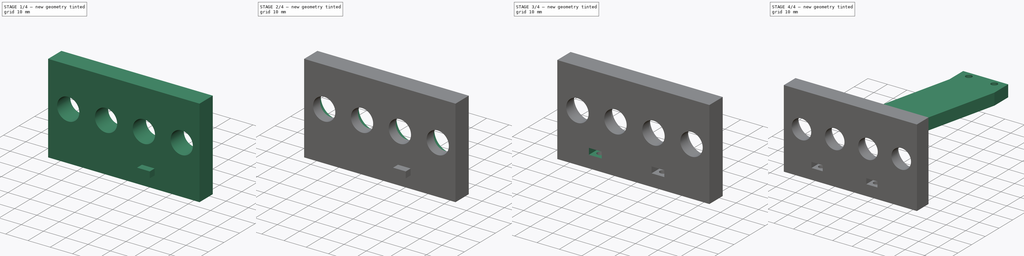
[diagram: build sequence overview — one tinted view per stage of 4, left to right]
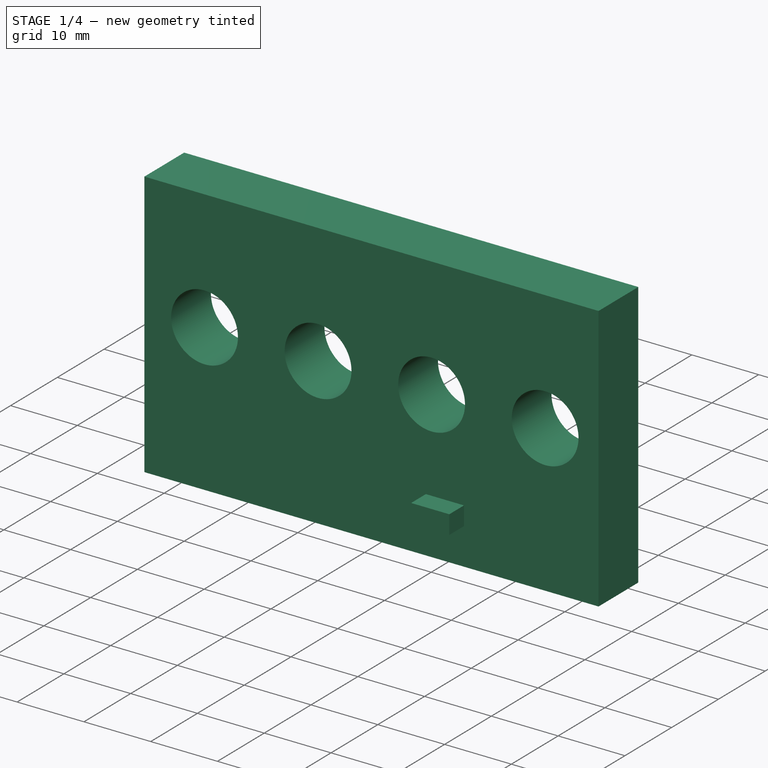
[diagram: stage 1 of 4 — iso view after this stage's code; geometry added in this stage tinted green]
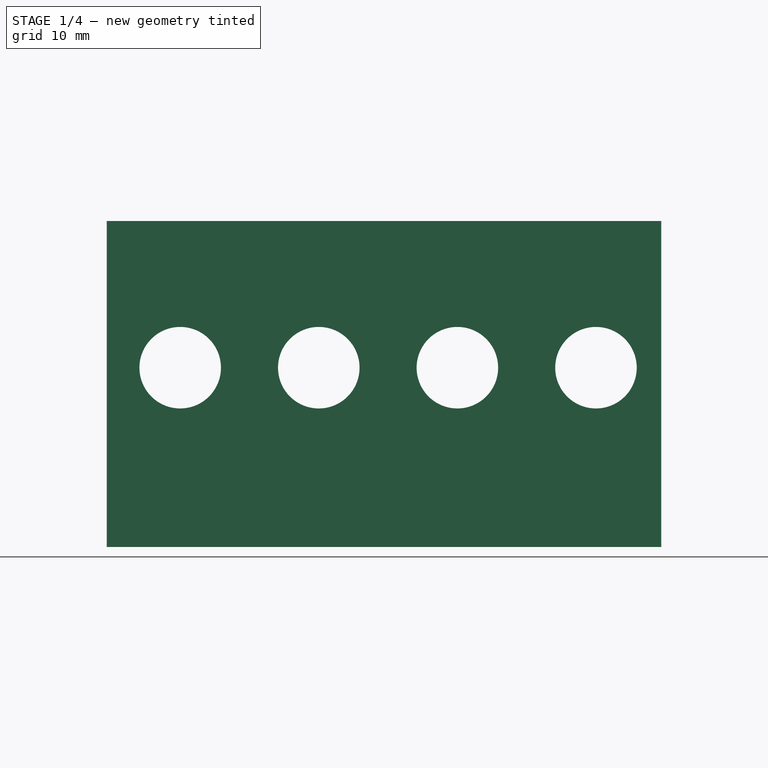
[diagram: stage 1 of 4 — front view after this stage's code; geometry added in this stage tinted green]
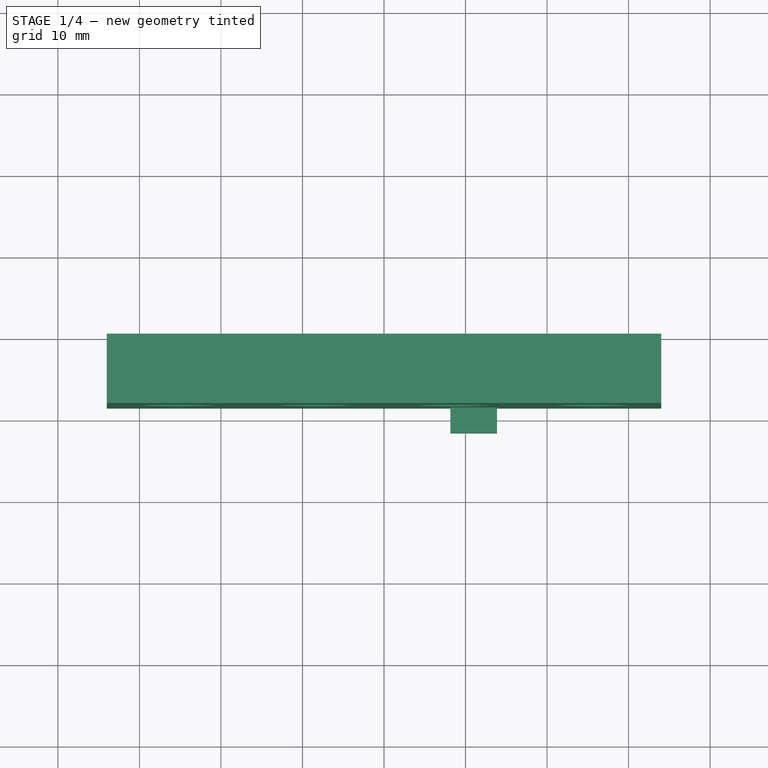
[diagram: stage 1 of 4 — top view after this stage's code; geometry added in this stage tinted green]
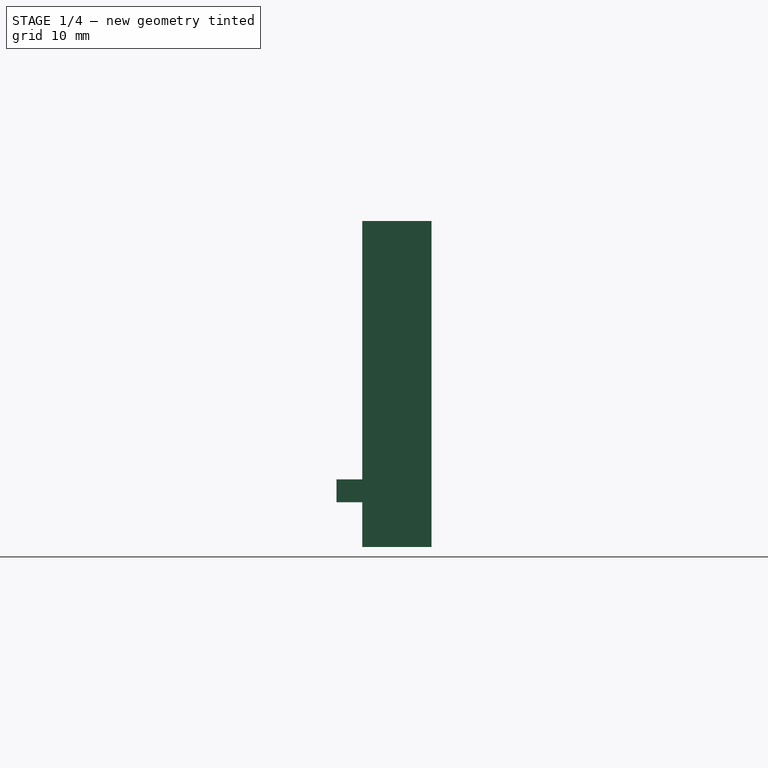
[diagram: stage 1 of 4 — right view after this stage's code; geometry added in this stage tinted green]
FCSTD DOCUMENT  (FreeCAD 0.16R6712 (Git))
Label: cinch-holder
License: All rights reserved
LicenseURL: http://en.wikipedia.org/wiki/All_rights_reserved
objects: Part::Part2DObjectPython×6, Sketcher::SketchObject×5, PartDesign::Pad×3, PartDesign::Pocket×2, Part::Extrusion×2, Part::Cut×2, App::DocumentObjectGroup×1
note: 25 computed .brp shape members not serialized (recipe doc carries the construction recipe); baked Part::Feature solids carry a one-line shape summary decoded from their .brp

FEATURE [Sketcher::SketchObject] Sketch
  Placement = pos=(0,-8.5,0) rot=(-1,0,0;4.71239rad)
  sketch-geometry (11):
    g0: LineSegment StartX=74 StartY=3.5 StartZ=0 EndX=74 EndY=43.5 EndZ=0
    g1: Circle CenterX=15 CenterY=25.5 CenterZ=0 NormalX=0 NormalY=0 NormalZ=1 Radius=5
    g2: Circle CenterX=32 CenterY=25.5 CenterZ=0 NormalX=0 NormalY=0 NormalZ=1 Radius=5
    g3: Circle CenterX=49 CenterY=25.5 CenterZ=0 NormalX=0 NormalY=0 NormalZ=1 Radius=5
    g4: Circle CenterX=66 CenterY=25.5 CenterZ=0 NormalX=0 NormalY=0 NormalZ=1 Radius=5
    g5: LineSegment [constr] StartX=15 StartY=25.5 StartZ=0 EndX=32 EndY=25.5 EndZ=0
    g6: LineSegment [constr] StartX=32 StartY=25.5 StartZ=0 EndX=49 EndY=25.5 EndZ=0
    g7: LineSegment [constr] StartX=49 StartY=25.5 StartZ=0 EndX=66 EndY=25.5 EndZ=0
    g8: LineSegment StartX=74 StartY=43.5 StartZ=0 EndX=6 EndY=43.5 EndZ=0
    g9: LineSegment StartX=6 StartY=43.5 StartZ=0 EndX=6 EndY=3.5 EndZ=0
    g10: LineSegment StartX=6 StartY=3.5 StartZ=0 EndX=74 EndY=3.5 EndZ=0
  constraints (29):
    c: Vertical(g0)
    c: Radius(g1) = 5
    c: Equal(g1,g2)
    c: Equal(g1,g3)
    c: Equal(g1,g4)
    c: Coincident(g5,g1)
    c: Coincident(g5,g2)
    c: Horizontal(g5)
    c: Coincident(g5,g6)
    c: Horizontal(g6)
    c: Coincident(g6,g7)
    c: Coincident(g7,g4)
    c: Horizontal(g7)
    c: Distance(g5) = 17
    c: Distance(g6) = 17
    c: Distance(g7) = 17
    c: DistanceY(g-1,g1) = 25.5
    c: DistanceX(g-1,g1) = 15
    c: Coincident(g8,g0)
    c: Horizontal(g8)
    c: Coincident(g8,g9)
    c: Vertical(g9)
    c: DistanceX(g-1,g9) = 6
    c: DistanceY(g-1,g9) = 3.5
    c: Coincident(g10,g9)
    c: Coincident(g10,g0)
    c: Horizontal(g10)
    c: Coincident(g3,g6)
    c: DistanceY(g-1,g8) = 43.5
FEATURE [PartDesign::Pad] Pad
  Length = 8.5
  Length2 = 100
  Placement = pos=(0,-8.5,0) rot=(-1,0,0;4.71239rad)
  Reversed = true
  Sketch = -> Sketch
  Type = 0
FEATURE [Part::Part2DObjectPython] Polygon001  # Draft 2D object (typed FeaturePython)
  ChamferSize = 0
  DrawMode = 0
  FacesNumber = 6
  FilletRadius = 0
  MakeFace = true
  Placement = pos=(9.76616,-38.7357,0) rot=(0,0,1;0.523599rad)
  Radius = 3.3
FEATURE [Part::Part2DObjectPython] Rectangle001  # Draft 2D object (typed FeaturePython)
  ChamferSize = 0
  Columns = 1
  FilletRadius = 0
  Height = -5
  Length = 5.71577
  MakeFace = true
  Placement = pos=(6.90828,-40.3857,0) rot=(0,0,1;0rad)
  Rows = 1
FEATURE [Part::Part2DObjectPython] Fusion001  # Draft 2D object (typed FeaturePython)
  Base = -> Rectangle001
  ChamferSize = 0
  Closed = false
  End = (12.624,-37.0857,0)
  FilletRadius = 0
  Length = 0
  MakeFace = true
  Points = (7) [(12.624,-40.3857,0),(12.624,-45.3857,0),(6.90828,-45.3857,0),(6.90828,-40.3857,0),(6.90828,-37.0857,0),(9.76616,-35.4357,0),(12.624,-37.0857,0)]
  Start = (12.624,-40.3857,0)
  Subdivisions = 0
  Tool = -> Polygon001
FEATURE [Part::Extrusion] Extrude001
  Base = -> Fusion001
  Dir = (0,0,2.8)
  Placement = pos=(41.2338,33.7357,9) rot=(0,0,1;0rad)
  Solid = false
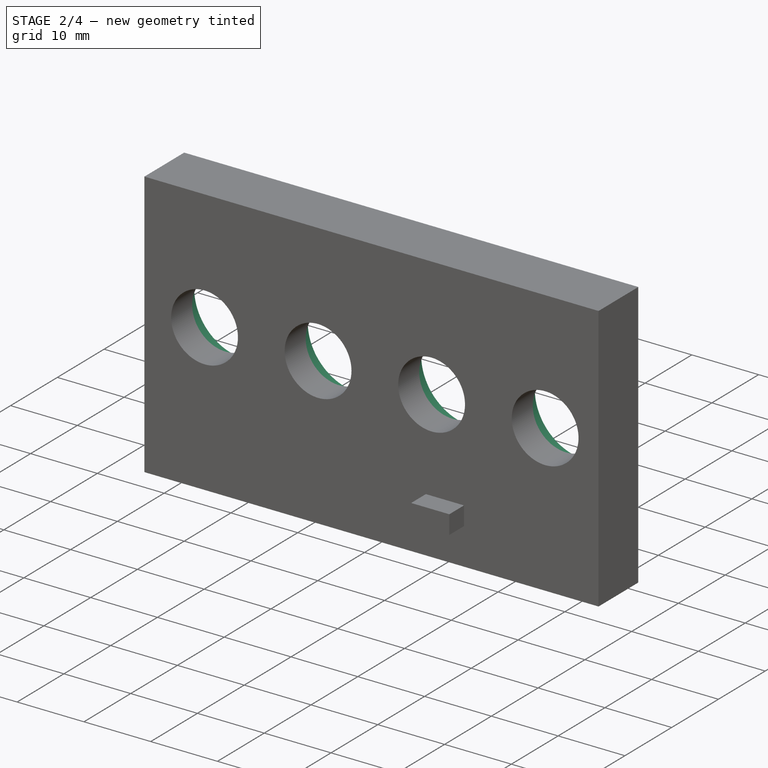
[diagram: stage 2 of 4 — iso view after this stage's code; geometry added in this stage tinted green]
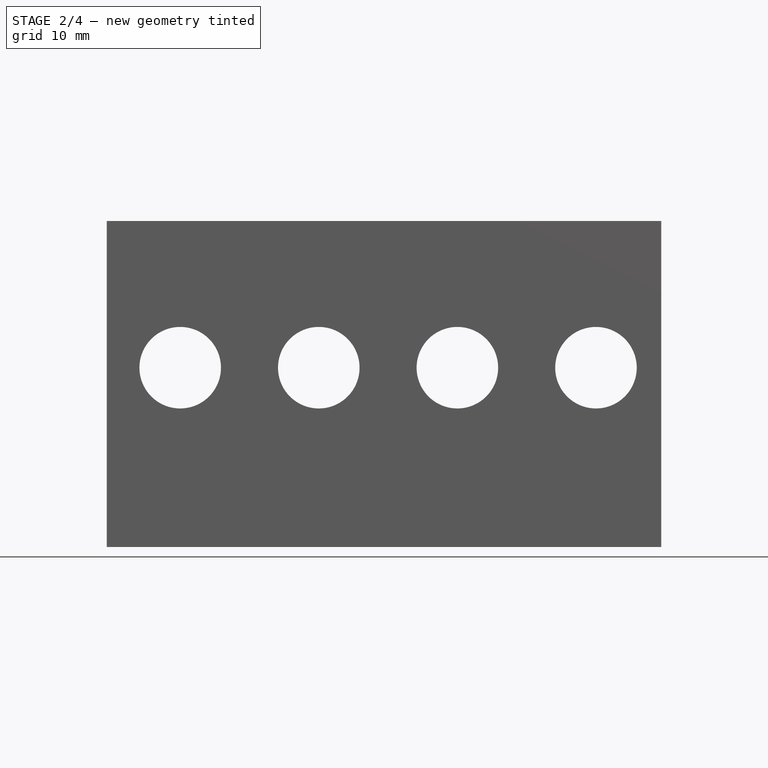
[diagram: stage 2 of 4 — front view after this stage's code; geometry added in this stage tinted green]
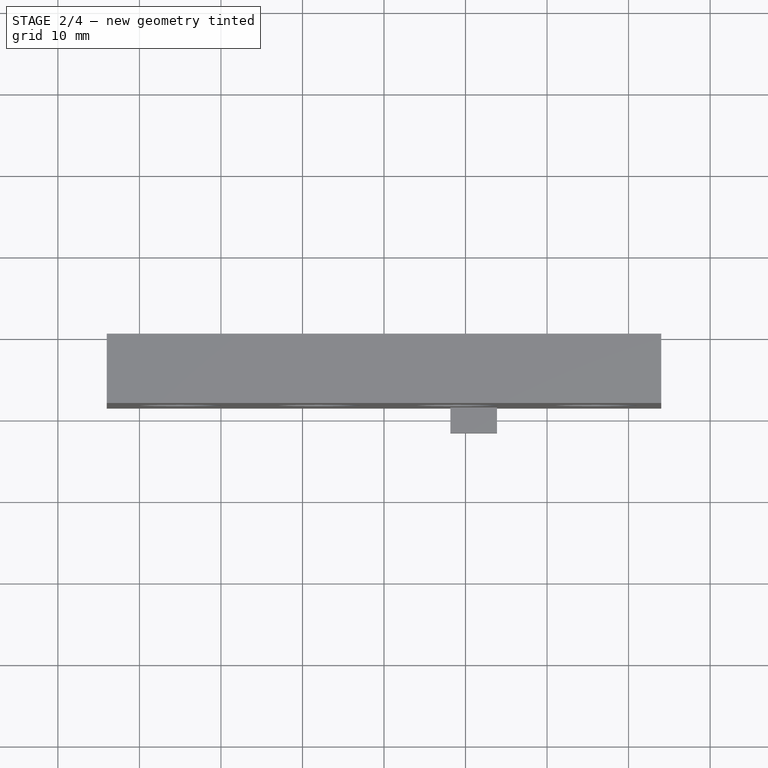
[diagram: stage 2 of 4 — top view after this stage's code; geometry added in this stage tinted green]
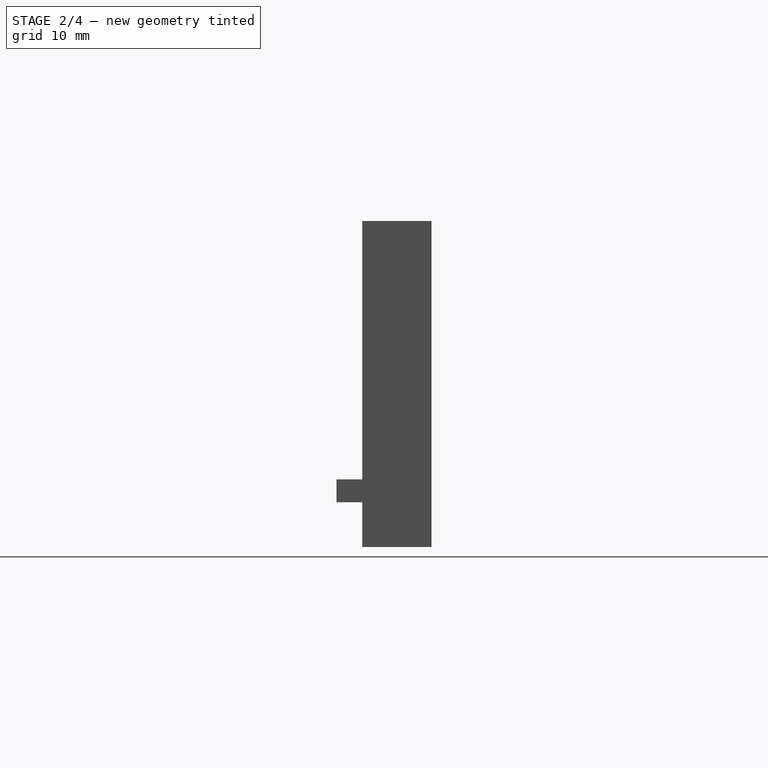
[diagram: stage 2 of 4 — right view after this stage's code; geometry added in this stage tinted green]
FEATURE [Sketcher::SketchObject] Sketch001
  ExternalGeometry = -> [Pad]
  Placement = pos=(0,0,0) rot=(-1,0,0;1.5708rad)
  Support = -> Pad [Face10]
  sketch-geometry (4):
    g0: Circle CenterX=15 CenterY=-25.5 CenterZ=0 NormalX=0 NormalY=0 NormalZ=1 Radius=7.5
    g1: Circle CenterX=32 CenterY=-25.5 CenterZ=0 NormalX=0 NormalY=0 NormalZ=1 Radius=7.5
    g2: Circle CenterX=49 CenterY=-25.5 CenterZ=0 NormalX=0 NormalY=0 NormalZ=1 Radius=7.5
    g3: Circle CenterX=66 CenterY=-25.5 CenterZ=0 NormalX=0 NormalY=0 NormalZ=1 Radius=7.5
  constraints (8):
    c: Coincident(g0,g-3)
    c: Coincident(g1,g-4)
    c: Coincident(g2,g-5)
    c: Coincident(g3,g-6)
    c: Radius(g0) = 7.5
    c: Equal(g0,g1)
    c: Equal(g0,g2)
    c: Equal(g0,g3)
FEATURE [PartDesign::Pocket] Pocket
  Length = 4
  Placement = pos=(0,-8.5,0) rot=(-1,0,0;4.71239rad)
  Sketch = -> Sketch001
  Type = 0
FEATURE [Sketcher::SketchObject] Sketch002
  Placement = pos=(0,-8.5,3.5) rot=(1,0,0;3.14159rad)
  Support = -> Pocket [Face2]
  sketch-geometry (3):
    g0: Circle CenterX=51 CenterY=-3.5 CenterZ=0 NormalX=0 NormalY=0 NormalZ=1 Radius=1.6
    g1: Circle CenterX=23 CenterY=-3.5 CenterZ=0 NormalX=0 NormalY=0 NormalZ=1 Radius=1.6
    g2: LineSegment [constr] StartX=23 StartY=-3.5 StartZ=0 EndX=51 EndY=-3.5 EndZ=0
  constraints (8):
    c: DistanceX(g0) = 51
    c: Radius(g0) = 1.6
    c: Radius(g1) = 1.6
    c: DistanceX(g1,g0) = 28
    c: Coincident(g2,g1)
    c: Coincident(g2,g0)
    c: Horizontal(g2)
    c: DistanceY(g1,g-1) = 3.5
FEATURE [PartDesign::Pocket] Pocket001
  Length = 10
  Placement = pos=(0,-8.5,0) rot=(-1,0,0;4.71239rad)
  Sketch = -> Sketch002
  Type = 0
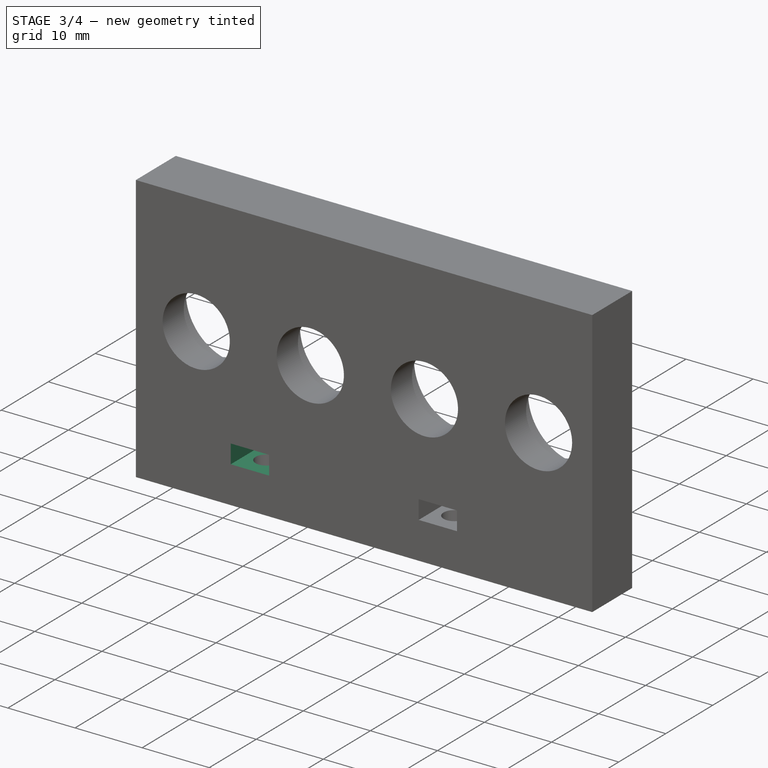
[diagram: stage 3 of 4 — iso view after this stage's code; geometry added in this stage tinted green]
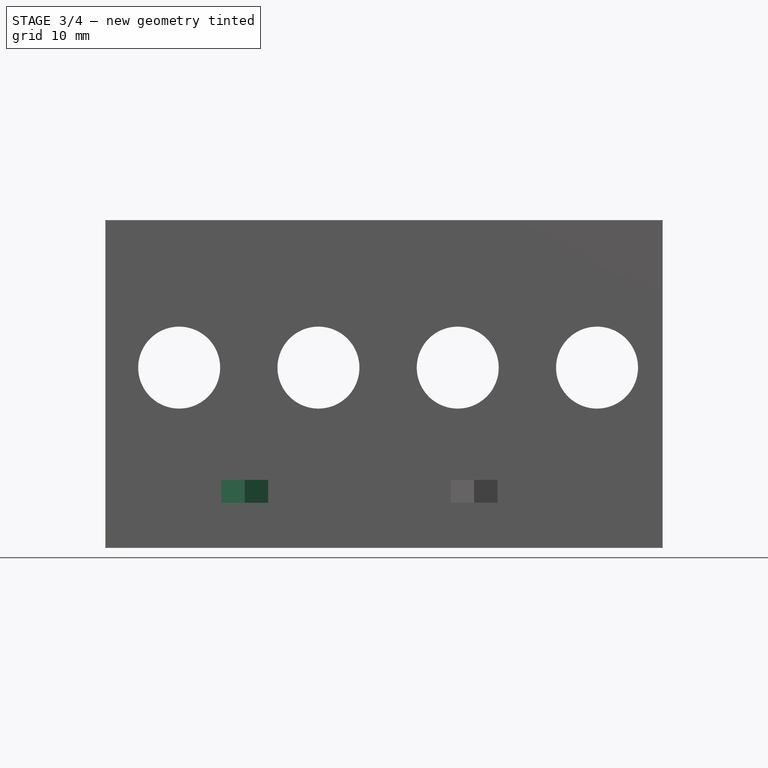
[diagram: stage 3 of 4 — front view after this stage's code; geometry added in this stage tinted green]
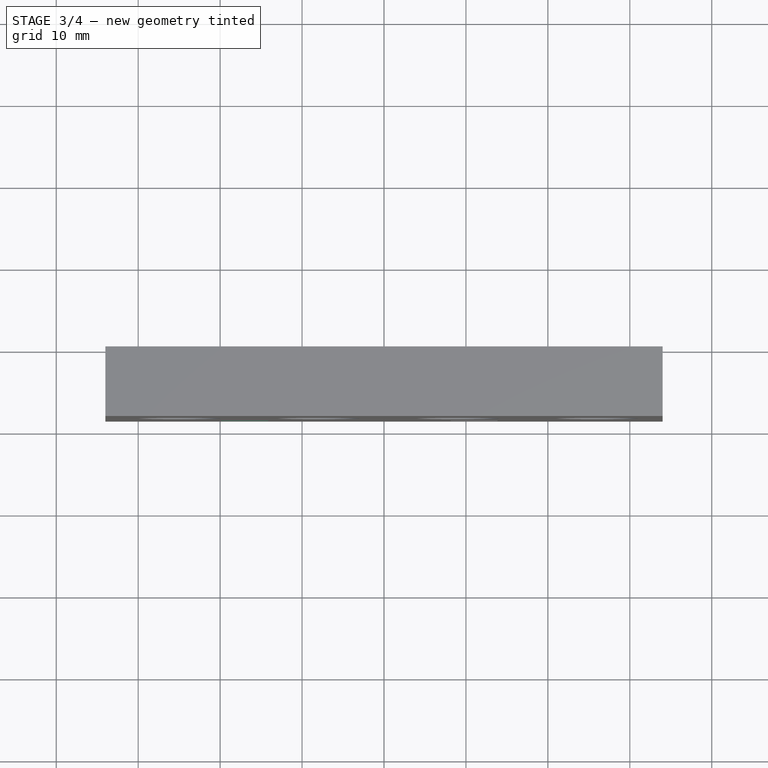
[diagram: stage 3 of 4 — top view after this stage's code; geometry added in this stage tinted green]
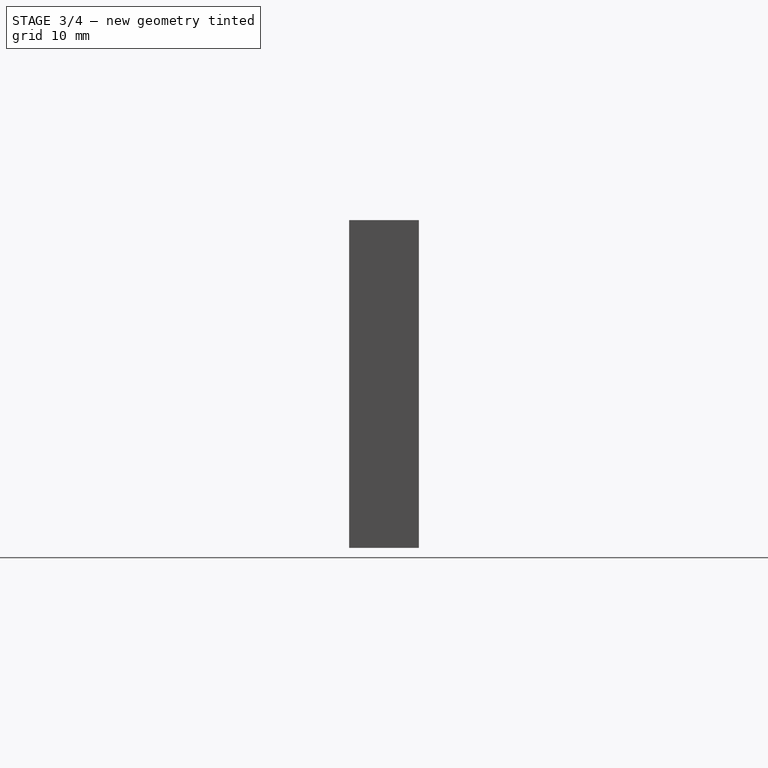
[diagram: stage 3 of 4 — right view after this stage's code; geometry added in this stage tinted green]
FEATURE [Part::Part2DObjectPython] Polygon  # Draft 2D object (typed FeaturePython)
  ChamferSize = 0
  DrawMode = 0
  FacesNumber = 6
  FilletRadius = 0
  MakeFace = true
  Placement = pos=(9.76616,-38.7357,0) rot=(0,0,1;0.523599rad)
  Radius = 3.3
FEATURE [Part::Part2DObjectPython] Rectangle  # Draft 2D object (typed FeaturePython)
  ChamferSize = 0
  Columns = 1
  FilletRadius = 0
  Height = -5
  Length = 5.71577
  MakeFace = true
  Placement = pos=(6.90828,-40.3857,0) rot=(0,0,1;0rad)
  Rows = 1
FEATURE [Part::Part2DObjectPython] Fusion  # Draft 2D object (typed FeaturePython)
  Base = -> Rectangle
  ChamferSize = 0
  Closed = false
  End = (12.624,-37.0857,0)
  FilletRadius = 0
  Length = 0
  MakeFace = true
  Points = (7) [(12.624,-40.3857,0),(12.624,-45.3857,0),(6.90828,-45.3857,0),(6.90828,-40.3857,0),(6.90828,-37.0857,0),(9.76616,-35.4357,0),(12.624,-37.0857,0)]
  Start = (12.624,-40.3857,0)
  Subdivisions = 0
  Tool = -> Polygon
FEATURE [App::DocumentObjectGroup] Construction
  Group = -> [Polygon,Rectangle,Fusion]
FEATURE [Part::Extrusion] Extrude
  Base = -> Fusion
  Dir = (0,0,2.8)
  Placement = pos=(13.2338,33.7357,9) rot=(0,0,1;0rad)
  Solid = false
FEATURE [Part::Cut] Cut
  Base = -> Pocket001
  Tool = -> Extrude001
FEATURE [Part::Cut] Cut001
  Base = -> Cut
  Tool = -> Extrude
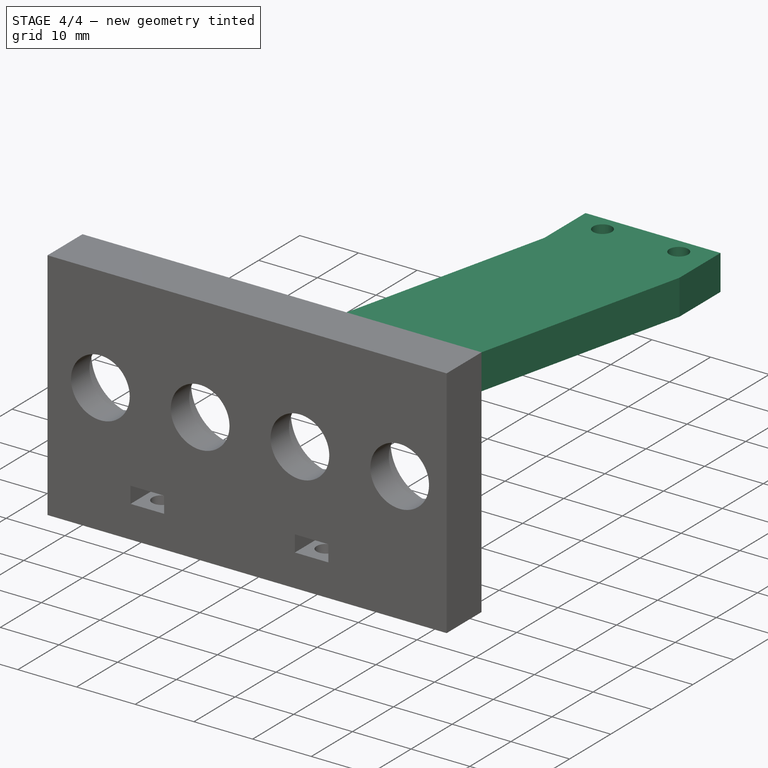
[diagram: stage 4 of 4 — iso view after this stage's code; geometry added in this stage tinted green]
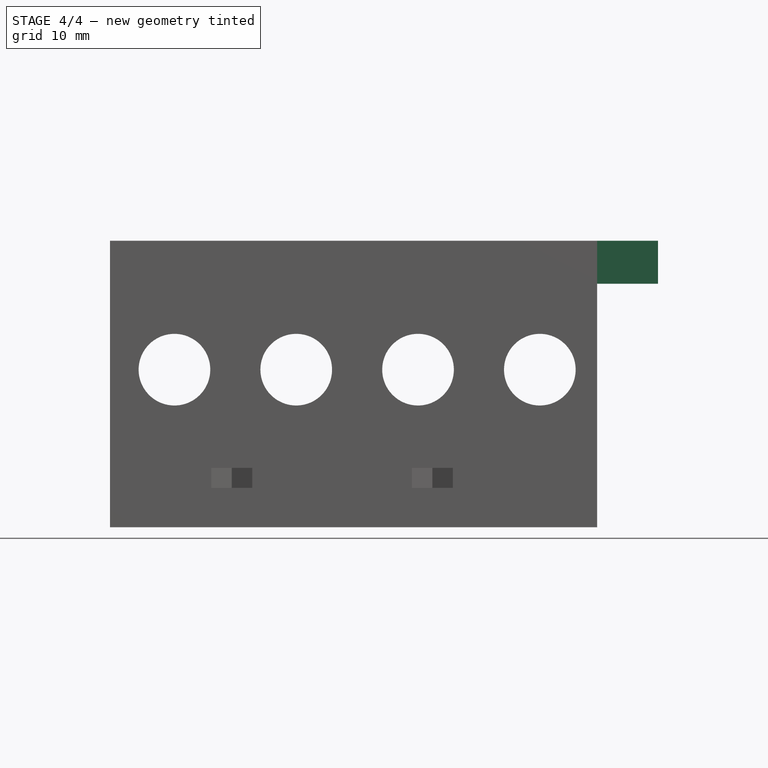
[diagram: stage 4 of 4 — front view after this stage's code; geometry added in this stage tinted green]
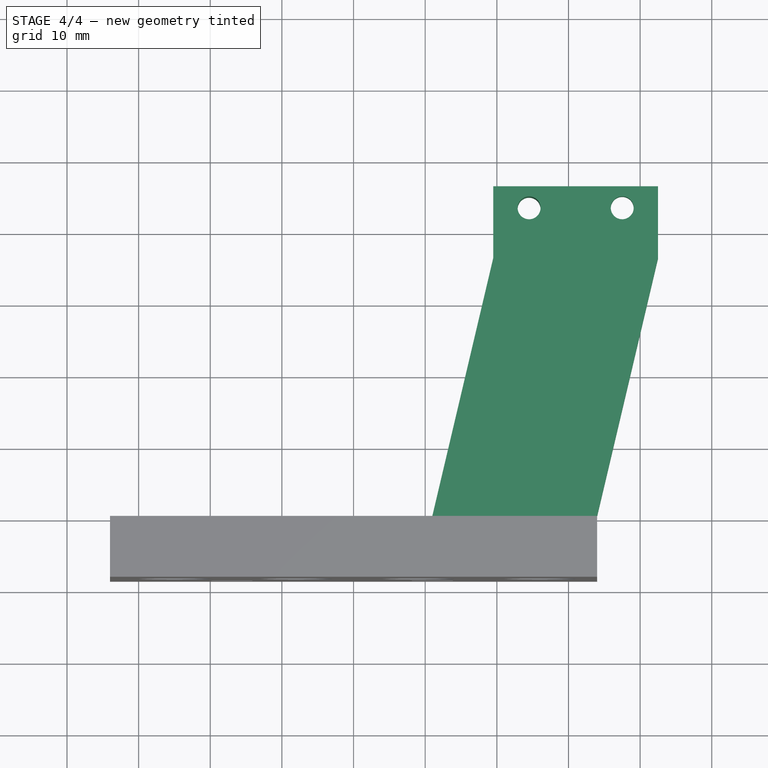
[diagram: stage 4 of 4 — top view after this stage's code; geometry added in this stage tinted green]
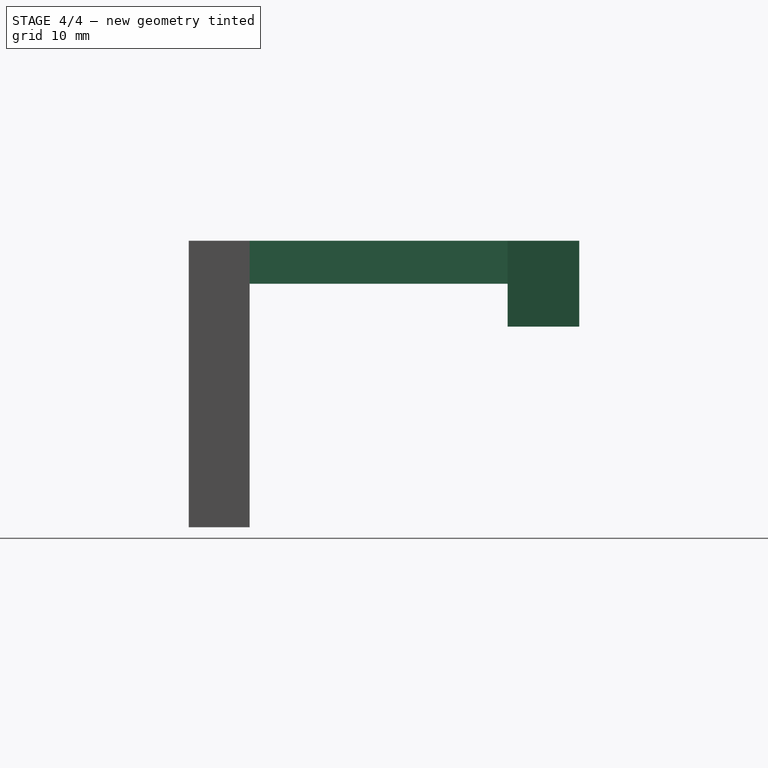
[diagram: stage 4 of 4 — right view after this stage's code; geometry added in this stage tinted green]
FEATURE [Sketcher::SketchObject] Sketch003
  ExternalGeometry = -> [Cut001]
  Placement = pos=(0,0,43.5) rot=(0,0,1;0rad)
  Support = -> Cut001 [Face3]
  sketch-geometry (9):
    g0: Circle CenterX=64.5 CenterY=43 CenterZ=0 NormalX=0 NormalY=0 NormalZ=1 Radius=1.6
    g1: Circle CenterX=77.5 CenterY=43 CenterZ=0 NormalX=0 NormalY=0 NormalZ=1 Radius=1.6
    g2: LineSegment [constr] StartX=64.5 StartY=43 StartZ=0 EndX=77.5 EndY=43 EndZ=0
    g3: LineSegment StartX=74 StartY=0 StartZ=0 EndX=82.5 EndY=36 EndZ=0
    g4: LineSegment StartX=82.5 StartY=36 StartZ=0 EndX=82.5 EndY=46 EndZ=0
    g5: LineSegment StartX=82.5 StartY=46 StartZ=0 EndX=59.5 EndY=46 EndZ=0
    g6: LineSegment StartX=59.5 StartY=46 StartZ=0 EndX=59.5 EndY=36 EndZ=0
    g7: LineSegment StartX=59.5 StartY=36 StartZ=0 EndX=51 EndY=0 EndZ=0
    g8: LineSegment StartX=51 StartY=0 StartZ=0 EndX=74 EndY=0 EndZ=0
  constraints (25):
    c: DistanceX(g0) = 64.5
    c: DistanceY(g0) = 43
    c: Radius(g0) = 1.6
    c: Radius(g1) = 1.6
    c: Coincident(g2,g0)
    c: Coincident(g2,g1)
    c: Horizontal(g2)
    c: Distance(g2) = 13
    c: Coincident(g-3,g3)
    c: Coincident(g3,g4)
    c: Vertical(g4)
    c: Coincident(g4,g5)
    c: Horizontal(g5)
    c: Coincident(g5,g6)
    c: Vertical(g6)
    c: Coincident(g6,g7)
    c: PointOnObject(g7,g-3)
    c: DistanceY(g0,g5) = 3
    c: DistanceX(g5,g0) = 5
    c: DistanceX(g1,g4) = 5
    c: Parallel(g7,g3)
    c: DistanceY(g3,g1) = 7
    c: DistanceY(g6,g1) = 7
    c: Coincident(g8,g7)
    c: Coincident(g8,g3)
FEATURE [PartDesign::Pad] Pad001
  Length = 6
  Length2 = 100
  Reversed = true
  Sketch = -> Sketch003
  Type = 0
FEATURE [Sketcher::SketchObject] Sketch004
  ExternalGeometry = -> [Pad001]
  Placement = pos=(0,0,37.5) rot=(1,0,0;3.14159rad)
  Support = -> Pad001 [Face5]
  sketch-geometry (5):
    g0: LineSegment StartX=59.5 StartY=-36 StartZ=0 EndX=71 EndY=-36 EndZ=0
    g1: LineSegment StartX=71 StartY=-36 StartZ=0 EndX=71 EndY=-46 EndZ=0
    g2: LineSegment StartX=71 StartY=-46 StartZ=0 EndX=59.5 EndY=-46 EndZ=0
    g3: LineSegment StartX=59.5 StartY=-46 StartZ=0 EndX=59.5 EndY=-36 EndZ=0
    g4: Circle CenterX=64.5 CenterY=-43 CenterZ=0 NormalX=0 NormalY=0 NormalZ=1 Radius=1.6
  constraints (13):
    c: Coincident(g0,g1)
    c: Coincident(g1,g2)
    c: Coincident(g2,g3)
    c: Coincident(g3,g0)
    c: Horizontal(g0)
    c: Horizontal(g2)
    c: Vertical(g1)
    c: Vertical(g3)
    c: Coincident(g0,g-4)
    c: PointOnObject(g1,g-5)
    c: DistanceX(g-3,g0) = 6.5
    c: Coincident(g4,g-3)
    c: Radius(g4) = 1.6
FEATURE [PartDesign::Pad] Pad002
  Length = 6
  Length2 = 100
  Sketch = -> Sketch004
  Type = 0
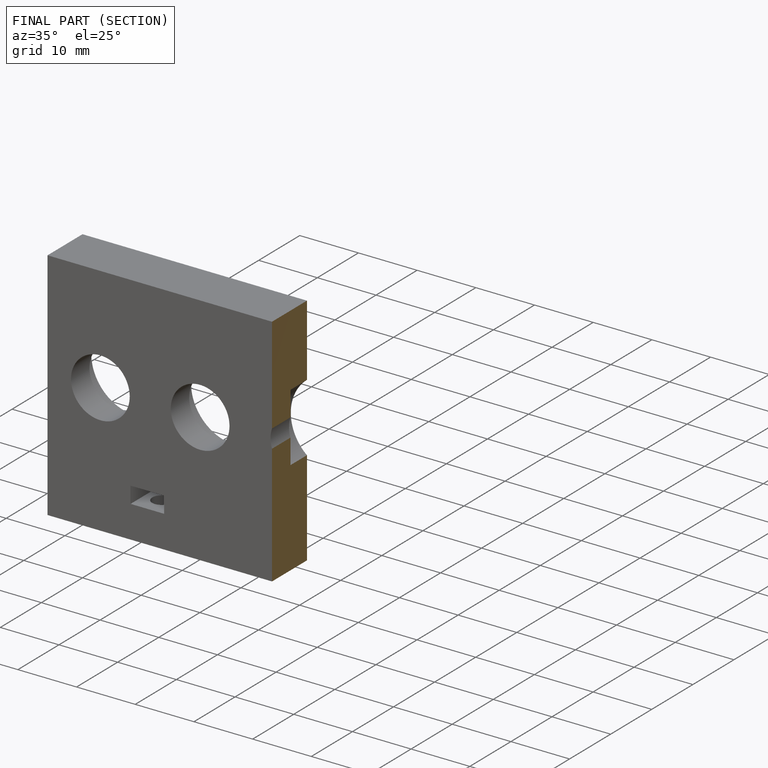
[diagram: finished part — half-section view (interior)]
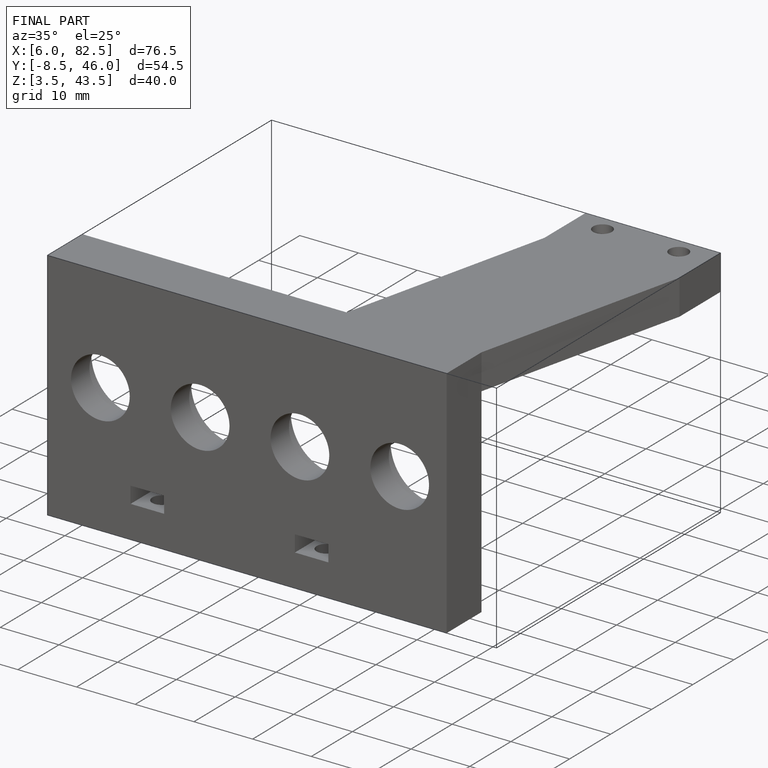
[diagram: finished part — iso view with bounding-box wireframe]
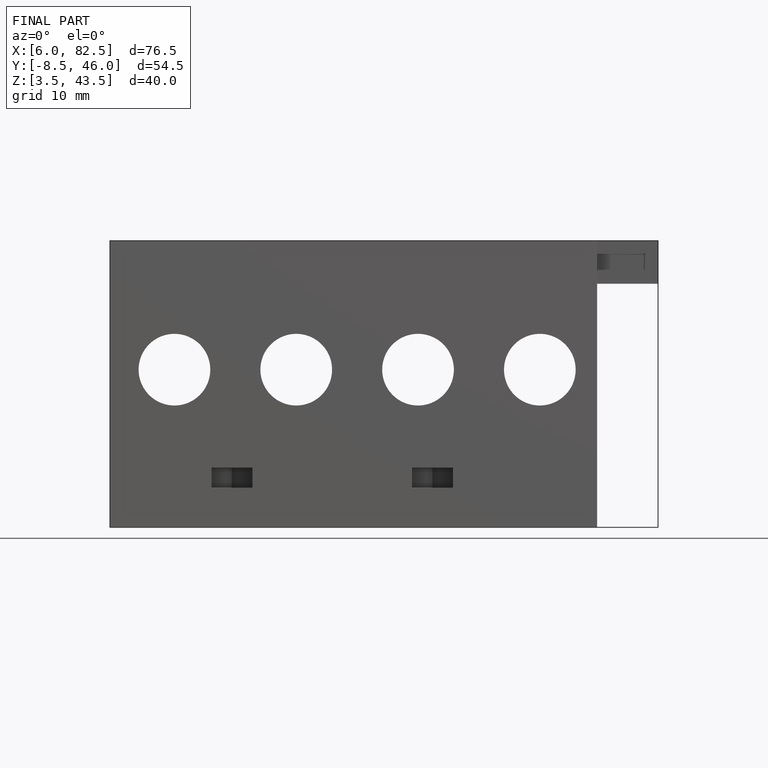
[diagram: finished part — front view with bounding-box wireframe]
